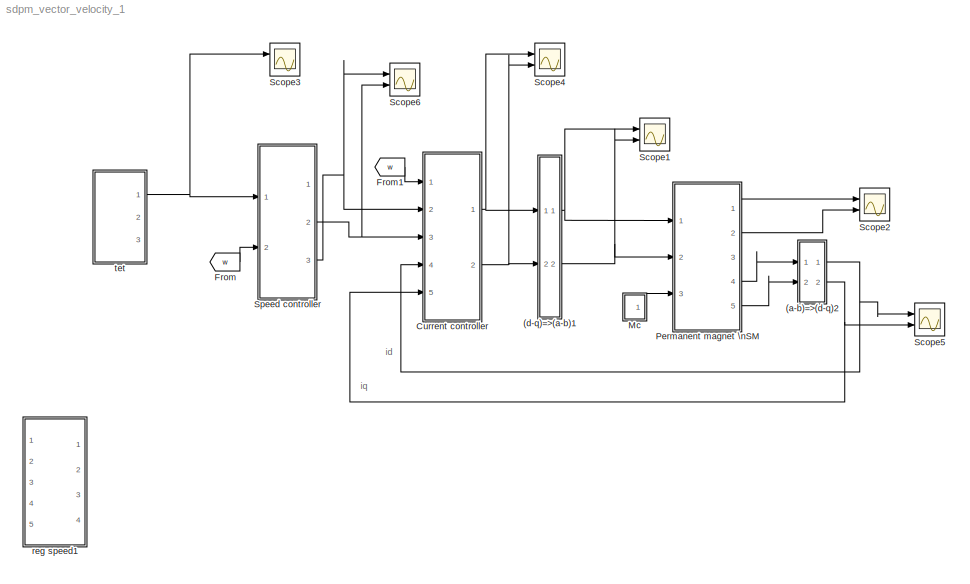
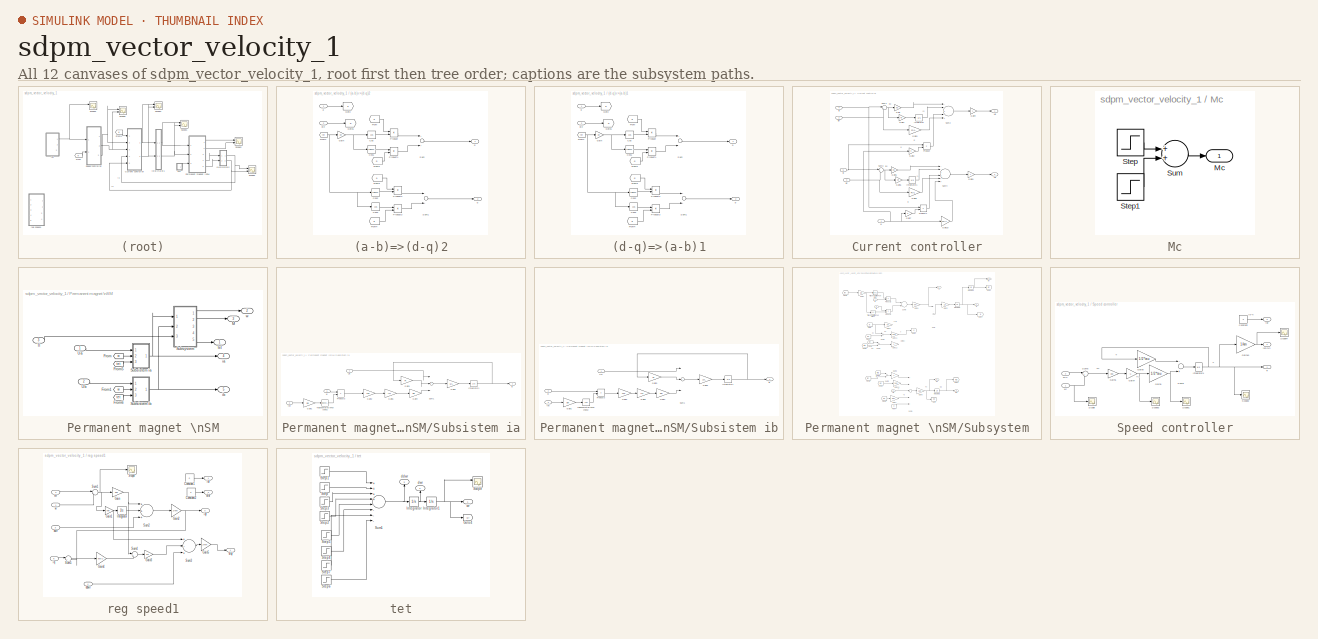
[diagram: thumbnail index - all 12 canvases of the model, root first then tree order]
MODEL sdpm_vector_velocity_1
KIND model
BLOCK [SubSystem] (a-b)=>(d-q)2
  Ports = [2, 2]
  RequestExecContextInheritance = off
  SID = 608
  Variant = off
BLOCK [Trigonometry] (a-b)=>(d-q)2/Cos
  Operator = cos
  Ports = [1, 1]
  SID = 1042
BLOCK [Trigonometry] (a-b)=>(d-q)2/Cos1
  Ports = [1, 1]
  SID = 1043
BLOCK [Trigonometry] (a-b)=>(d-q)2/Cos2
  Ports = [1, 1]
  SID = 1044
BLOCK [Trigonometry] (a-b)=>(d-q)2/Cos3
  Operator = cos
  Ports = [1, 1]
  SID = 1045
BLOCK [From] (a-b)=>(d-q)2/From
  GotoTag = a
  SID = 1046
BLOCK [From] (a-b)=>(d-q)2/From1
  CloseFcn = tagdialog Close
  GotoTag = tet
  SID = 1047
  TagVisibility = global
BLOCK [From] (a-b)=>(d-q)2/From2
  GotoTag = b
  SID = 1048
BLOCK [From] (a-b)=>(d-q)2/From3
  GotoTag = a
  SID = 1049
BLOCK [From] (a-b)=>(d-q)2/From4
  GotoTag = b
  SID = 1050
BLOCK [Gain] (a-b)=>(d-q)2/Gain
  Gain = pn
  OutDataTypeStr = Inherit: Inherit via internal rule
  ParamDataTypeStr = Inherit: Inherit via internal rule
  SID = 1051
  SaturateOnIntegerOverflow = off
BLOCK [Goto] (a-b)=>(d-q)2/Goto
  GotoTag = a
  SID = 1052
BLOCK [Goto] (a-b)=>(d-q)2/Goto1
  GotoTag = b
  SID = 1053
BLOCK [Product] (a-b)=>(d-q)2/Product
  InputSameDT = off
  OutDataTypeStr = Inherit: Inherit via internal rule
  Ports = [2, 1]
  RndMeth = Floor
  SID = 1054
  SaturateOnIntegerOverflow = off
BLOCK [Product] (a-b)=>(d-q)2/Product1
  InputSameDT = off
  OutDataTypeStr = Inherit: Inherit via internal rule
  Ports = [2, 1]
  RndMeth = Floor
  SID = 1055
  SaturateOnIntegerOverflow = off
BLOCK [Product] (a-b)=>(d-q)2/Product2
  InputSameDT = off
  OutDataTypeStr = Inherit: Inherit via internal rule
  Ports = [2, 1]
  RndMeth = Floor
  SID = 1056
  SaturateOnIntegerOverflow = off
BLOCK [Product] (a-b)=>(d-q)2/Product3
  InputSameDT = off
  OutDataTypeStr = Inherit: Inherit via internal rule
  Ports = [2, 1]
  RndMeth = Floor
  SID = 1057
  SaturateOnIntegerOverflow = off
BLOCK [Sum] (a-b)=>(d-q)2/Sum
  InputSameDT = off
  OutDataTypeStr = Inherit: Inherit via internal rule
  Ports = [2, 1]
  SID = 1058
  SaturateOnIntegerOverflow = off
BLOCK [Sum] (a-b)=>(d-q)2/Sum1
  InputSameDT = off
  Inputs = -+
  OutDataTypeStr = Inherit: Inherit via internal rule
  Ports = [2, 1]
  SID = 1059
  SaturateOnIntegerOverflow = off
BLOCK [Inport] (a-b)=>(d-q)2/a
  IconDisplay = Port number
  SID = 1040
BLOCK [Inport] (a-b)=>(d-q)2/b\n
  IconDisplay = Port number
  Port = 2
  SID = 1041
BLOCK [Outport] (a-b)=>(d-q)2/d
  IconDisplay = Port number
  SID = 1060
BLOCK [Outport] (a-b)=>(d-q)2/q
  IconDisplay = Port number
  Port = 2
  SID = 1061
BLOCK [SubSystem] (d-q)=>(a-b)1
  Ports = [2, 2]
  RequestExecContextInheritance = off
  SID = 586
  Variant = off
BLOCK [Trigonometry] (d-q)=>(a-b)1/Cos
  Operator = cos
  Ports = [1, 1]
  SID = 1021
BLOCK [Trigonometry] (d-q)=>(a-b)1/Cos1
  Ports = [1, 1]
  SID = 1022
BLOCK [Trigonometry] (d-q)=>(a-b)1/Cos2
  Ports = [1, 1]
  SID = 1026
BLOCK [Trigonometry] (d-q)=>(a-b)1/Cos3
  Operator = cos
  Ports = [1, 1]
  SID = 1027
BLOCK [From] (d-q)=>(a-b)1/From
  GotoTag = d
  SID = 1036
BLOCK [From] (d-q)=>(a-b)1/From1
  CloseFcn = tagdialog Close
  GotoTag = tet
  SID = 652
  TagVisibility = global
BLOCK [From] (d-q)=>(a-b)1/From2
  GotoTag = q
  SID = 1037
BLOCK [From] (d-q)=>(a-b)1/From3
  GotoTag = d
  SID = 1038
BLOCK [From] (d-q)=>(a-b)1/From4
  GotoTag = q
  SID = 1039
BLOCK [Gain] (d-q)=>(a-b)1/Gain
  Gain = pn
  OutDataTypeStr = Inherit: Inherit via internal rule
  ParamDataTypeStr = Inherit: Inherit via internal rule
  SID = 590
  SaturateOnIntegerOverflow = off
BLOCK [Goto] (d-q)=>(a-b)1/Goto
  GotoTag = d
  SID = 1032
BLOCK [Goto] (d-q)=>(a-b)1/Goto1
  GotoTag = q
  SID = 1034
BLOCK [Product] (d-q)=>(a-b)1/Product
  InputSameDT = off
  OutDataTypeStr = Inherit: Inherit via internal rule
  Ports = [2, 1]
  RndMeth = Floor
  SID = 1023
  SaturateOnIntegerOverflow = off
BLOCK [Product] (d-q)=>(a-b)1/Product1
  InputSameDT = off
  OutDataTypeStr = Inherit: Inherit via internal rule
  Ports = [2, 1]
  RndMeth = Floor
  SID = 1025
  SaturateOnIntegerOverflow = off
BLOCK [Product] (d-q)=>(a-b)1/Product2
  InputSameDT = off
  OutDataTypeStr = Inherit: Inherit via internal rule
  Ports = [2, 1]
  RndMeth = Floor
  SID = 1028
  SaturateOnIntegerOverflow = off
BLOCK [Product] (d-q)=>(a-b)1/Product3
  InputSameDT = off
  OutDataTypeStr = Inherit: Inherit via internal rule
  Ports = [2, 1]
  RndMeth = Floor
  SID = 1029
  SaturateOnIntegerOverflow = off
BLOCK [Sum] (d-q)=>(a-b)1/Sum
  InputSameDT = off
  Inputs = +-
  OutDataTypeStr = Inherit: Inherit via internal rule
  Ports = [2, 1]
  SID = 1024
  SaturateOnIntegerOverflow = off
BLOCK [Sum] (d-q)=>(a-b)1/Sum1
  InputSameDT = off
  OutDataTypeStr = Inherit: Inherit via internal rule
  Ports = [2, 1]
  SID = 1030
  SaturateOnIntegerOverflow = off
BLOCK [Outport] (d-q)=>(a-b)1/a
  IconDisplay = Port number
  SID = 606
BLOCK [Outport] (d-q)=>(a-b)1/b
  IconDisplay = Port number
  Port = 2
  SID = 607
BLOCK [Inport] (d-q)=>(a-b)1/d
  IconDisplay = Port number
  SID = 587
BLOCK [Inport] (d-q)=>(a-b)1/q\n
  IconDisplay = Port number
  Port = 2
  SID = 1035
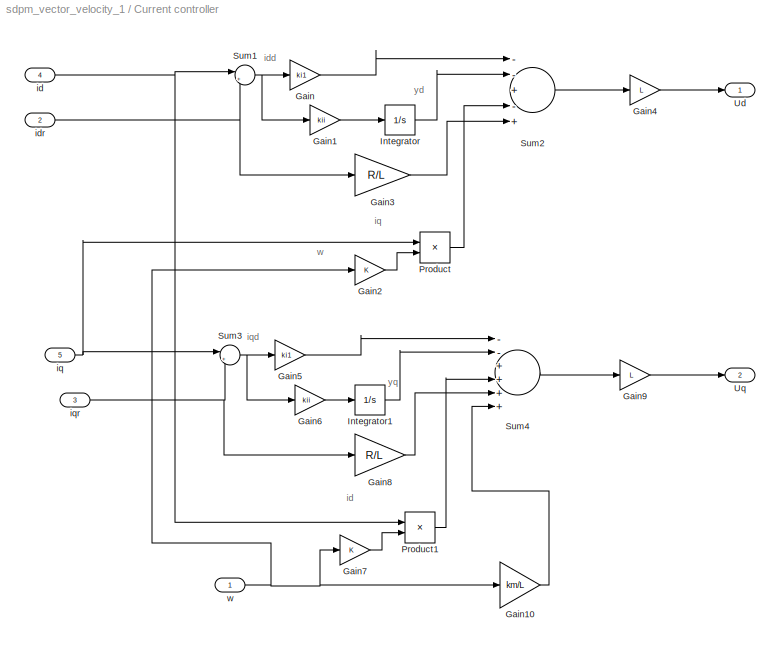
BLOCK [SubSystem] Current controller
  Ports = [5, 2]
  RequestExecContextInheritance = off
  SID = 389
  Variant = off
BLOCK [Gain] Current controller/Gain
  Gain = ki1
  OutDataTypeStr = Inherit: Inherit via internal rule
  ParamDataTypeStr = Inherit: Inherit via internal rule
  SID = 399
  SaturateOnIntegerOverflow = off
BLOCK [Gain] Current controller/Gain1
  Gain = kii
  OutDataTypeStr = Inherit: Inherit via internal rule
  ParamDataTypeStr = Inherit: Inherit via internal rule
  SID = 400
  SaturateOnIntegerOverflow = off
BLOCK [Gain] Current controller/Gain10
  Gain = km/L
  OutDataTypeStr = Inherit: Inherit via internal rule
  ParamDataTypeStr = Inherit: Inherit via internal rule
  SID = 401
  SaturateOnIntegerOverflow = off
BLOCK [Gain] Current controller/Gain2
  OutDataTypeStr = Inherit: Inherit via internal rule
  ParamDataTypeStr = Inherit: Inherit via internal rule
  SID = 402
  SaturateOnIntegerOverflow = off
BLOCK [Gain] Current controller/Gain3
  Gain = R/L
  OutDataTypeStr = Inherit: Inherit via internal rule
  ParamDataTypeStr = Inherit: Inherit via internal rule
  SID = 403
  SaturateOnIntegerOverflow = off
BLOCK [Gain] Current controller/Gain4
  Gain = L
  OutDataTypeStr = Inherit: Inherit via internal rule
  ParamDataTypeStr = Inherit: Inherit via internal rule
  SID = 404
  SaturateOnIntegerOverflow = off
BLOCK [Gain] Current controller/Gain5
  Gain = ki1
  OutDataTypeStr = Inherit: Inherit via internal rule
  ParamDataTypeStr = Inherit: Inherit via internal rule
  SID = 405
  SaturateOnIntegerOverflow = off
BLOCK [Gain] Current controller/Gain6
  Gain = kii
  OutDataTypeStr = Inherit: Inherit via internal rule
  ParamDataTypeStr = Inherit: Inherit via internal rule
  SID = 406
  SaturateOnIntegerOverflow = off
BLOCK [Gain] Current controller/Gain7
  OutDataTypeStr = Inherit: Inherit via internal rule
  ParamDataTypeStr = Inherit: Inherit via internal rule
  SID = 407
  SaturateOnIntegerOverflow = off
BLOCK [Gain] Current controller/Gain8
  Gain = R/L
  OutDataTypeStr = Inherit: Inherit via internal rule
  ParamDataTypeStr = Inherit: Inherit via internal rule
  SID = 408
  SaturateOnIntegerOverflow = off
BLOCK [Gain] Current controller/Gain9
  Gain = L
  OutDataTypeStr = Inherit: Inherit via internal rule
  ParamDataTypeStr = Inherit: Inherit via internal rule
  SID = 409
  SaturateOnIntegerOverflow = off
BLOCK [Integrator] Current controller/Integrator
  Ports = [1, 1]
  SID = 410
BLOCK [Integrator] Current controller/Integrator1
  Ports = [1, 1]
  SID = 411
BLOCK [Product] Current controller/Product
  InputSameDT = off
  OutDataTypeStr = Inherit: Inherit via internal rule
  Ports = [2, 1]
  RndMeth = Floor
  SID = 412
  SaturateOnIntegerOverflow = off
BLOCK [Product] Current controller/Product1
  InputSameDT = off
  OutDataTypeStr = Inherit: Inherit via internal rule
  Ports = [2, 1]
  RndMeth = Floor
  SID = 413
  SaturateOnIntegerOverflow = off
BLOCK [Sum] Current controller/Sum1
  IconShape = round
  InputSameDT = off
  Inputs = |+-
  OutDataTypeStr = Inherit: Inherit via internal rule
  Ports = [2, 1]
  SID = 414
  SaturateOnIntegerOverflow = off
BLOCK [Sum] Current controller/Sum2
  InputSameDT = off
  Inputs = --+-+
  OutDataTypeStr = Inherit: Inherit via internal rule
  Ports = [5, 1]
  SID = 415
  SaturateOnIntegerOverflow = off
BLOCK [Sum] Current controller/Sum3
  IconShape = round
  InputSameDT = off
  Inputs = |+-
  OutDataTypeStr = Inherit: Inherit via internal rule
  Ports = [2, 1]
  SID = 416
  SaturateOnIntegerOverflow = off
BLOCK [Sum] Current controller/Sum4
  InputSameDT = off
  Inputs = --++++
  OutDataTypeStr = Inherit: Inherit via internal rule
  Ports = [6, 1]
  SID = 417
  SaturateOnIntegerOverflow = off
BLOCK [Outport] Current controller/Ud
  IconDisplay = Port number
  SID = 418
BLOCK [Outport] Current controller/Uq
  IconDisplay = Port number
  Port = 2
  SID = 419
BLOCK [Inport] Current controller/id
  IconDisplay = Port number
  Port = 4
  SID = 390
BLOCK [Inport] Current controller/idr
  IconDisplay = Port number
  Port = 2
  SID = 391
BLOCK [Inport] Current controller/iq
  IconDisplay = Port number
  Port = 5
  SID = 393
BLOCK [Inport] Current controller/iqr
  IconDisplay = Port number
  Port = 3
  SID = 394
BLOCK [Inport] Current controller/w
  IconDisplay = Port number
  SID = 396
BLOCK [From] From
  GotoTag = w
  SID = 911
  TagVisibility = global
BLOCK [From] From1
  GotoTag = w
  SID = 933
  TagVisibility = global
BLOCK [SubSystem] Mc
  Ports = [0, 1]
  RequestExecContextInheritance = off
  SID = 238
  Variant = off
BLOCK [Outport] Mc/Mc
  IconDisplay = Port number
  SID = 242
BLOCK [Step] Mc/Step
  After = Mc
  SID = 239
  Time = te
BLOCK [Step] Mc/Step1
  After = -Mc
  SID = 240
  Time = td
BLOCK [Sum] Mc/Sum
  Ports = [2, 1]
  SID = 241
BLOCK [SubSystem] Permanent magnet \nSM
  Ports = [3, 5]
  RequestExecContextInheritance = off
  SID = 243
  Variant = off
BLOCK [From] Permanent magnet \nSM/From
  GotoTag = w
  SID = 922
  TagVisibility = global
BLOCK [From] Permanent magnet \nSM/From1
  GotoTag = w
  SID = 923
  TagVisibility = global
BLOCK [From] Permanent magnet \nSM/From5
  GotoTag = tet
  SID = 929
  TagVisibility = global
BLOCK [From] Permanent magnet \nSM/From6
  GotoTag = tet
  SID = 930
  TagVisibility = global
BLOCK [Outport] Permanent magnet \nSM/M
  IconDisplay = Port number
  Port = 3
  SID = 293
BLOCK [SubSystem] Permanent magnet \nSM/Subsistem ia
  Ports = [3, 1]
  RequestExecContextInheritance = off
  SID = 248
  Variant = off
BLOCK [Gain] Permanent magnet \nSM/Subsistem ia/Gain1
  Gain = pn
  SID = 252
BLOCK [Gain] Permanent magnet \nSM/Subsistem ia/Gain2
  Gain = Lm
  SID = 870
BLOCK [Gain] Permanent magnet \nSM/Subsistem ia/Gain3
  Gain = R
  SID = 253
BLOCK [Gain] Permanent magnet \nSM/Subsistem ia/Gain4
  Gain = pn
  SID = 254
BLOCK [Gain] Permanent magnet \nSM/Subsistem ia/Gain5
  Gain = 1/L
  SID = 255
BLOCK [Gain] Permanent magnet \nSM/Subsistem ia/Gain6
  Gain = iff
  SID = 871
BLOCK [Integrator] Permanent magnet \nSM/Subsistem ia/Integrator1
  Ports = [1, 1]
  SID = 256
BLOCK [Product] Permanent magnet \nSM/Subsistem ia/Product3
  Ports = [2, 1]
  SID = 257
BLOCK [Sum] Permanent magnet \nSM/Subsistem ia/Sum1
  InputSameDT = off
  Inputs = |+-+
  OutDataTypeStr = Inherit: Inherit via internal rule
  Ports = [3, 1]
  SID = 258
  SaturateOnIntegerOverflow = off
BLOCK [Trigonometry] Permanent magnet \nSM/Subsistem ia/Trigonometric\nFunction2
  Ports = [1, 1]
  SID = 259
BLOCK [Inport] Permanent magnet \nSM/Subsistem ia/Ua
  IconDisplay = Port number
  SID = 249
BLOCK [Outport] Permanent magnet \nSM/Subsistem ia/ia
  IconDisplay = Port number
  SID = 260
BLOCK [Inport] Permanent magnet \nSM/Subsistem ia/tet
  IconDisplay = Port number
  Port = 3
  SID = 251
BLOCK [Inport] Permanent magnet \nSM/Subsistem ia/w
  IconDisplay = Port number
  Port = 2
  SID = 250
BLOCK [SubSystem] Permanent magnet \nSM/Subsistem ib
  Ports = [3, 1]
  RequestExecContextInheritance = off
  SID = 261
  Variant = off
BLOCK [Gain] Permanent magnet \nSM/Subsistem ib/Gain1
  Gain = pn
  SID = 265
BLOCK [Gain] Permanent magnet \nSM/Subsistem ib/Gain2
  Gain = Lm
  SID = 874
BLOCK [Gain] Permanent magnet \nSM/Subsistem ib/Gain3
  Gain = R
  SID = 266
BLOCK [Gain] Permanent magnet \nSM/Subsistem ib/Gain4
  Gain = pn
  SID = 875
BLOCK [Gain] Permanent magnet \nSM/Subsistem ib/Gain5
  Gain = 1/L
  SID = 268
BLOCK [Gain] Permanent magnet \nSM/Subsistem ib/Gain6
  Gain = iff
  SID = 876
BLOCK [Integrator] Permanent magnet \nSM/Subsistem ib/Integrator1
  Ports = [1, 1]
  SID = 269
BLOCK [Product] Permanent magnet \nSM/Subsistem ib/Product3
  Ports = [2, 1]
  SID = 270
BLOCK [Sum] Permanent magnet \nSM/Subsistem ib/Sum1
  InputSameDT = off
  Inputs = |+--
  OutDataTypeStr = Inherit: Inherit via internal rule
  Ports = [3, 1]
  SID = 271
  SaturateOnIntegerOverflow = off
BLOCK [Trigonometry] Permanent magnet \nSM/Subsistem ib/Trigonometric\nFunction2
  Operator = cos
  Ports = [1, 1]
  SID = 272
BLOCK [Inport] Permanent magnet \nSM/Subsistem ib/Ub
  IconDisplay = Port number
  SID = 262
BLOCK [Outport] Permanent magnet \nSM/Subsistem ib/ib
  IconDisplay = Port number
  SID = 273
BLOCK [Inport] Permanent magnet \nSM/Subsistem ib/tet
  IconDisplay = Port number
  Port = 3
  SID = 264
BLOCK [Inport] Permanent magnet \nSM/Subsistem ib/w
  IconDisplay = Port number
  Port = 2
  SID = 263
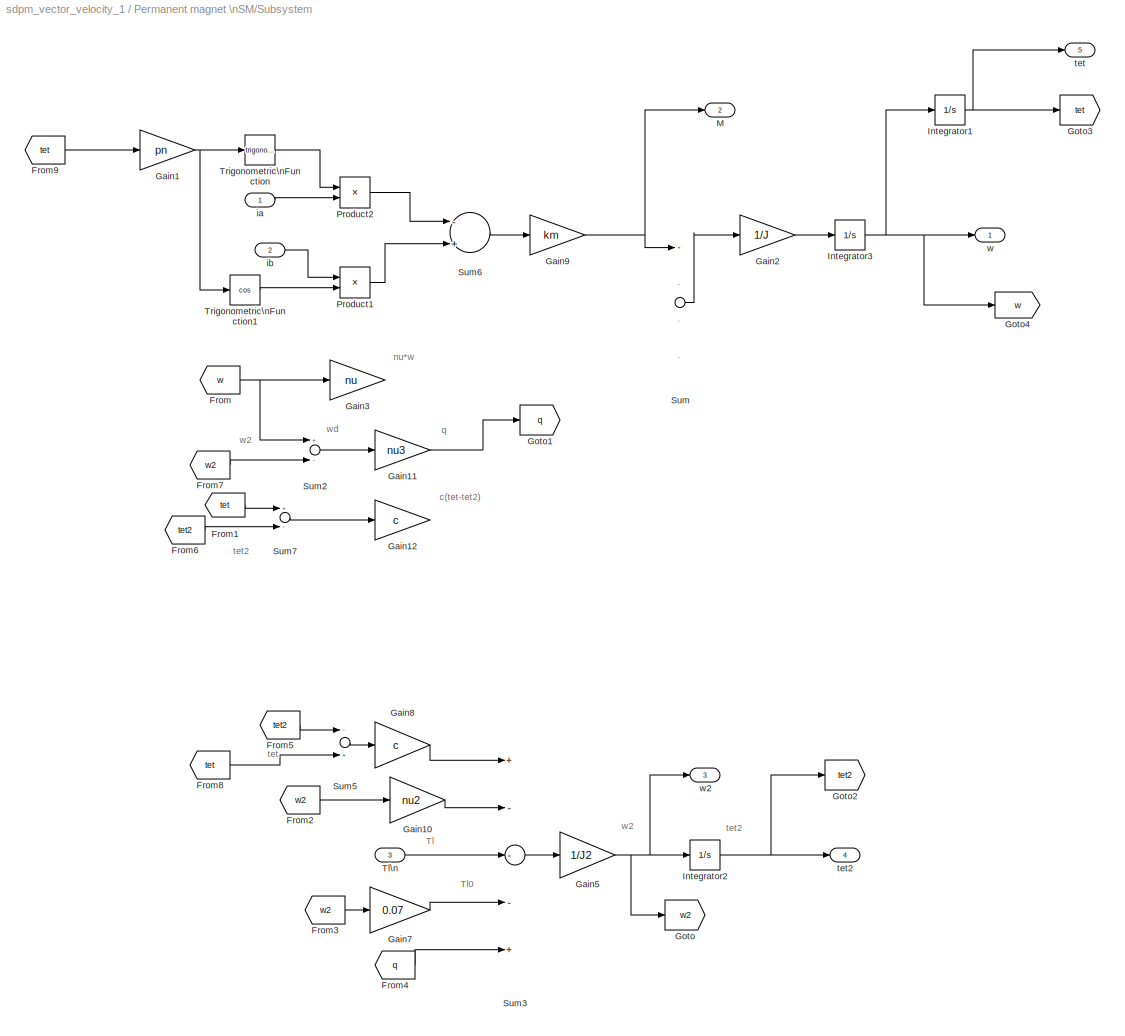
BLOCK [SubSystem] Permanent magnet \nSM/Subsystem
  Ports = [3, 5]
  RequestExecContextInheritance = off
  SID = 274
  Variant = off
BLOCK [From] Permanent magnet \nSM/Subsystem/From
  GotoTag = w
  SID = 934
  TagVisibility = global
BLOCK [From] Permanent magnet \nSM/Subsystem/From1
  GotoTag = tet
  SID = 1001
  TagVisibility = global
BLOCK [From] Permanent magnet \nSM/Subsystem/From2
  GotoTag = w2
  SID = 1006
BLOCK [From] Permanent magnet \nSM/Subsystem/From3
  GotoTag = w2
  SID = 1008
BLOCK [From] Permanent magnet \nSM/Subsystem/From4
  GotoTag = q
  SID = 1011
BLOCK [From] Permanent magnet \nSM/Subsystem/From5
  GotoTag = tet2
  SID = 1013
BLOCK [From] Permanent magnet \nSM/Subsystem/From6
  GotoTag = tet2
  SID = 1014
BLOCK [From] Permanent magnet \nSM/Subsystem/From7
  GotoTag = w2
  SID = 1015
BLOCK [From] Permanent magnet \nSM/Subsystem/From8
  GotoTag = tet
  SID = 1018
  TagVisibility = global
BLOCK [From] Permanent magnet \nSM/Subsystem/From9
  GotoTag = tet
  SID = 1019
  TagVisibility = global
BLOCK [Gain] Permanent magnet \nSM/Subsystem/Gain1
  Gain = pn
  SID = 279
BLOCK [Gain] Permanent magnet \nSM/Subsystem/Gain10
  Gain = nu2
  SID = 975
BLOCK [Gain] Permanent magnet \nSM/Subsystem/Gain11
  Gain = nu3
  SID = 998
BLOCK [Gain] Permanent magnet \nSM/Subsystem/Gain12
  Gain = c
  SID = 1003
BLOCK [Gain] Permanent magnet \nSM/Subsystem/Gain2
  Gain = 1/J
  SID = 280
BLOCK [Gain] Permanent magnet \nSM/Subsystem/Gain3
  Gain = nu
  SID = 935
BLOCK [Gain] Permanent magnet \nSM/Subsystem/Gain5
  Gain = 1/J2
  SID = 971
BLOCK [Gain] Permanent magnet \nSM/Subsystem/Gain7
  Gain = 0.07
  SID = 973
BLOCK [Gain] Permanent magnet \nSM/Subsystem/Gain8
  Gain = c
  SID = 974
BLOCK [Gain] Permanent magnet \nSM/Subsystem/Gain9
  Gain = km
  SID = 281
BLOCK [Goto] Permanent magnet \nSM/Subsystem/Goto
  GotoTag = w2
  SID = 1005
BLOCK [Goto] Permanent magnet \nSM/Subsystem/Goto1
  GotoTag = q
  SID = 1010
BLOCK [Goto] Permanent magnet \nSM/Subsystem/Goto2
  GotoTag = tet2
  SID = 1012
BLOCK [Goto] Permanent magnet \nSM/Subsystem/Goto3
  GotoTag = tet
  SID = 1017
  TagVisibility = global
BLOCK [Goto] Permanent magnet \nSM/Subsystem/Goto4
  GotoTag = w
  SID = 237
  TagVisibility = global
BLOCK [Integrator] Permanent magnet \nSM/Subsystem/Integrator1
  Ports = [1, 1]
  SID = 1016
BLOCK [Integrator] Permanent magnet \nSM/Subsystem/Integrator2
  Ports = [1, 1]
  SID = 976
BLOCK [Integrator] Permanent magnet \nSM/Subsystem/Integrator3
  Ports = [1, 1]
  SID = 282
BLOCK [Outport] Permanent magnet \nSM/Subsystem/M
  IconDisplay = Port number
  Port = 2
  SID = 290
BLOCK [Product] Permanent magnet \nSM/Subsystem/Product1
  Ports = [2, 1]
  SID = 283
BLOCK [Product] Permanent magnet \nSM/Subsystem/Product2
  Ports = [2, 1]
  SID = 284
BLOCK [Sum] Permanent magnet \nSM/Subsystem/Sum
  InputSameDT = off
  Inputs = +---
  OutDataTypeStr = Inherit: Inherit via internal rule
  Ports = [4, 1]
  SID = 285
  SaturateOnIntegerOverflow = off
BLOCK [Sum] Permanent magnet \nSM/Subsystem/Sum2
  Inputs = +-
  Ports = [2, 1]
  SID = 995
BLOCK [Sum] Permanent magnet \nSM/Subsystem/Sum3
  Inputs = +---+
  Ports = [5, 1]
  SID = 978
BLOCK [Sum] Permanent magnet \nSM/Subsystem/Sum5
  Inputs = -+
  Ports = [2, 1]
  SID = 980
BLOCK [Sum] Permanent magnet \nSM/Subsystem/Sum6
  Inputs = -+
  Ports = [2, 1]
  SID = 286
BLOCK [Sum] Permanent magnet \nSM/Subsystem/Sum7
  Inputs = +-
  Ports = [2, 1]
  SID = 1000
BLOCK [Inport] Permanent magnet \nSM/Subsystem/Tl\n
  IconDisplay = Port number
  Port = 3
  SID = 969
BLOCK [Trigonometry] Permanent magnet \nSM/Subsystem/Trigonometric\nFunction
  Ports = [1, 1]
  SID = 287
BLOCK [Trigonometry] Permanent magnet \nSM/Subsystem/Trigonometric\nFunction1
  Operator = cos
  Ports = [1, 1]
  SID = 288
BLOCK [Inport] Permanent magnet \nSM/Subsystem/ia
  IconDisplay = Port number
  SID = 277
BLOCK [Inport] Permanent magnet \nSM/Subsystem/ib
  IconDisplay = Port number
  Port = 2
  SID = 278
BLOCK [Outport] Permanent magnet \nSM/Subsystem/tet
  IconDisplay = Port number
  Port = 5
  SID = 1020
BLOCK [Outport] Permanent magnet \nSM/Subsystem/tet2
  IconDisplay = Port number
  Port = 4
  SID = 982
BLOCK [Outport] Permanent magnet \nSM/Subsystem/w
  IconDisplay = Port number
  SID = 289
BLOCK [Outport] Permanent magnet \nSM/Subsystem/w2
  IconDisplay = Port number
  Port = 3
  SID = 981
BLOCK [Inport] Permanent magnet \nSM/Tl
  IconDisplay = Port number
  Port = 3
  SID = 246
BLOCK [Inport] Permanent magnet \nSM/Ua
  IconDisplay = Port number
  SID = 244
BLOCK [Inport] Permanent magnet \nSM/Ub
  IconDisplay = Port number
  Port = 2
  SID = 245
BLOCK [Outport] Permanent magnet \nSM/ia
  IconDisplay = Port number
  Port = 4
  SID = 294
BLOCK [Outport] Permanent magnet \nSM/ib
  IconDisplay = Port number
  Port = 5
  SID = 295
BLOCK [Outport] Permanent magnet \nSM/tet
  IconDisplay = Port number
  SID = 291
BLOCK [Outport] Permanent magnet \nSM/w
  IconDisplay = Port number
  Port = 2
  SID = 292
BLOCK [Scope] Scope1
  NumInputPorts = 2
  Ports = [2]
  SID = 297
  ScopeSpecificationString = Simulink.scopes.TimeScopeBlockCfg('CurrentConfiguration', extmgr.ConfigurationSet(extmgr.Configuration('Core','General UI',true),extmgr.Configuration('Core','Source UI',true),extmgr.Configuration('Sources','WiredSimulink',true,'DataLoggingVariableName','ScopeData3','DataLoggingSaveFormat','StructureWithTime','DataLoggingDecimation','1','DataLoggingDecimateData',true),extmgr.Configuration('Visuals'...<+2319ch>
BLOCK [Scope] Scope2
  NumInputPorts = 2
  Ports = [2]
  SID = 932
  ScopeSpecificationString = Simulink.scopes.TimeScopeBlockCfg('CurrentConfiguration', extmgr.ConfigurationSet(extmgr.Configuration('Core','General UI',true),extmgr.Configuration('Core','Source UI',true),extmgr.Configuration('Sources','WiredSimulink',true,'DataLoggingSaveFormat','StructureWithTime','DataLoggingDecimation','1','DataLoggingDecimateData',true,'DataLoggingVariableName','ScopeData7'),extmgr.Configuration('Visuals'...<+2389ch>
BLOCK [Scope] Scope3
  NumInputPorts = 2
  Ports = [2]
  SID = 299
  ScopeSpecificationString = Simulink.scopes.TimeScopeBlockCfg('CurrentConfiguration', extmgr.ConfigurationSet(extmgr.Configuration('Core','General UI',true),extmgr.Configuration('Core','Source UI',true),extmgr.Configuration('Sources','WiredSimulink',true,'DataLoggingVariableName','ScopeData4','DataLoggingSaveFormat','StructureWithTime','DataLoggingDecimation','1','DataLoggingDecimateData',true),extmgr.Configuration('Visuals'...<+2306ch>
BLOCK [Scope] Scope4
  NumInputPorts = 2
  Ports = [2]
  SID = 879
  ScopeSpecificationString = Simulink.scopes.TimeScopeBlockCfg('CurrentConfiguration', extmgr.ConfigurationSet(extmgr.Configuration('Core','General UI',true),extmgr.Configuration('Core','Source UI',true),extmgr.Configuration('Sources','WiredSimulink',true,'DataLoggingVariableName','ScopeData1','DataLoggingSaveFormat','StructureWithTime','DataLoggingDecimation','1','DataLoggingDecimateData',true),extmgr.Configuration('Visuals'...<+2325ch>
BLOCK [Scope] Scope5
  NumInputPorts = 2
  Ports = [2]
  SID = 798
  ScopeSpecificationString = Simulink.scopes.TimeScopeBlockCfg('CurrentConfiguration', extmgr.ConfigurationSet(extmgr.Configuration('Core','General UI',true),extmgr.Configuration('Core','Source UI',true),extmgr.Configuration('Sources','WiredSimulink',true,'DataLoggingVariableName','ScopeData6','DataLoggingSaveFormat','StructureWithTime','DataLoggingDecimation','1','DataLoggingDecimateData',true),extmgr.Configuration('Visuals'...<+2365ch>
BLOCK [Scope] Scope6
  NumInputPorts = 2
  Ports = [2]
  SID = 913
  ScopeSpecificationString = Simulink.scopes.TimeScopeBlockCfg('CurrentConfiguration', extmgr.ConfigurationSet(extmgr.Configuration('Core','General UI',true),extmgr.Configuration('Core','Source UI',true),extmgr.Configuration('Sources','WiredSimulink',true,'DataLoggingVariableName','ScopeData1','DataLoggingSaveFormat','StructureWithTime','DataLoggingDecimation','1','DataLoggingDecimateData',true),extmgr.Configuration('Visuals'...<+2320ch>
BLOCK [SubSystem] Speed controller
  Ports = [2, 3]
  RequestExecContextInheritance = off
  SID = 673
  Variant = off
BLOCK [Constant] Speed controller/Constant
  SID = 905
  Value = 0
BLOCK [Gain] Speed controller/Gain10
  Gain = 1/km
  OutDataTypeStr = Inherit: Inherit via internal rule
  ParamDataTypeStr = Inherit: Inherit via internal rule
  SID = 902
  SaturateOnIntegerOverflow = off
BLOCK [Gain] Speed controller/Gain6
  Gain = kw
  OutDataTypeStr = Inherit: Inherit via internal rule
  ParamDataTypeStr = Inherit: Inherit via internal rule
  SID = 892
  SaturateOnIntegerOverflow = off
BLOCK [Gain] Speed controller/Gain7
  Gain = -1
  OutDataTypeStr = Inherit: Inherit via internal rule
  ParamDataTypeStr = Inherit: Inherit via internal rule
  SID = 893
  SaturateOnIntegerOverflow = off
BLOCK [Gain] Speed controller/Gain8
  Gain = 1/2*tau
  OutDataTypeStr = Inherit: Inherit via internal rule
  ParamDataTypeStr = Inherit: Inherit via internal rule
  SID = 898
  SaturateOnIntegerOverflow = off
BLOCK [Gain] Speed controller/Gain9
  Gain = 1/2*tau
  OutDataTypeStr = Inherit: Inherit via internal rule
  ParamDataTypeStr = Inherit: Inherit via internal rule
  SID = 899
  SaturateOnIntegerOverflow = off
BLOCK [Integrator] Speed controller/Integrator1
  Ports = [1, 1]
  SID = 895
BLOCK [Scope] Speed controller/Scope
  NumInputPorts = 1
  Ports = [1]
  SID = 915
  ScopeSpecificationString = Simulink.scopes.TimeScopeBlockCfg('CurrentConfiguration', extmgr.ConfigurationSet(extmgr.Configuration('Core','General UI',true),extmgr.Configuration('Core','Source UI',true),extmgr.Configuration('Sources','WiredSimulink',true,'DataLoggingVariableName','ScopeData2'),extmgr.Configuration('Visuals','Time Domain',true,'SerializedDisplays',{struct('MinYLimReal','-125.00000','MaxYLimReal','1125.00000',...<+1377ch>
BLOCK [Scope] Speed controller/Scope1
  NumInputPorts = 1
  Ports = [1]
  SID = 916
  ScopeSpecificationString = Simulink.scopes.TimeScopeBlockCfg('CurrentConfiguration', extmgr.ConfigurationSet(extmgr.Configuration('Core','General UI',true),extmgr.Configuration('Core','Source UI',true),extmgr.Configuration('Sources','WiredSimulink',true,'DataLoggingVariableName','ScopeData3'),extmgr.Configuration('Visuals','Time Domain',true,'SerializedDisplays',{struct('MinYLimReal','-0.00028','MaxYLimReal','0.0022','YLabe...<+1360ch>
BLOCK [Scope] Speed controller/Scope2
  NumInputPorts = 1
  Ports = [1]
  SID = 917
  ScopeSpecificationString = Simulink.scopes.TimeScopeBlockCfg('CurrentConfiguration', extmgr.ConfigurationSet(extmgr.Configuration('Core','General UI',true),extmgr.Configuration('Core','Source UI',true),extmgr.Configuration('Sources','WiredSimulink',true,'DataLoggingVariableName','ScopeData4'),extmgr.Configuration('Visuals','Time Domain',true,'SerializedDisplays',{struct('MinYLimReal','-0.00036','MaxYLimReal','0.00323','YLab...<+1370ch>
BLOCK [Scope] Speed controller/Scope3
  NumInputPorts = 1
  Ports = [1]
  SID = 918
  ScopeSpecificationString = Simulink.scopes.TimeScopeBlockCfg('CurrentConfiguration', extmgr.ConfigurationSet(extmgr.Configuration('Core','General UI',true),extmgr.Configuration('Core','Source UI',true),extmgr.Configuration('Sources','WiredSimulink',true,'DataLoggingVariableName','ScopeData5'),extmgr.Configuration('Visuals','Time Domain',true,'SerializedDisplays',{struct('MinYLimReal','37.82266','MaxYLimReal','42.67193','YLa...<+1389ch>
BLOCK [Scope] Speed controller/Scope4
  NumInputPorts = 1
  Ports = [1]
  SID = 919
  ScopeSpecificationString = Simulink.scopes.TimeScopeBlockCfg('CurrentConfiguration', extmgr.ConfigurationSet(extmgr.Configuration('Core','General UI',true),extmgr.Configuration('Core','Source UI',true),extmgr.Configuration('Sources','WiredSimulink',true,'DataLoggingVariableName','ScopeData6'),extmgr.Configuration('Visuals','Time Domain',true,'SerializedDisplays',{struct('MinYLimReal','-0.00181','MaxYLimReal','0.0163','YLabe...<+1361ch>
BLOCK [Sum] Speed controller/Sum5
  IconShape = round
  InputSameDT = off
  Inputs = |+-
  OutDataTypeStr = Inherit: Inherit via internal rule
  Ports = [2, 1]
  SID = 889
  SaturateOnIntegerOverflow = off
BLOCK [Sum] Speed controller/Sum6
  InputSameDT = off
  Inputs = -+
  OutDataTypeStr = Inherit: Inherit via internal rule
  Ports = [2, 1]
  SID = 900
  SaturateOnIntegerOverflow = off
BLOCK [Outport] Speed controller/Tr
  IconDisplay = Port number
  SID = 885
BLOCK [Outport] Speed controller/idr
  IconDisplay = Port number
  Port = 3
  SID = 904
BLOCK [Outport] Speed controller/iqr\n\n
  IconDisplay = Port number
  Port = 2
  SID = 901
BLOCK [Inport] Speed controller/w\n
  IconDisplay = Port number
  Port = 2
  SID = 888
BLOCK [Inport] Speed controller/wr
  IconDisplay = Port number
  SID = 910
BLOCK [SubSystem] reg speed1
  Ports = [5, 4]
  RequestExecContextInheritance = off
  SID = 697
  Variant = off
BLOCK [Constant] reg speed1/Constant1
  SID = 703
  Value = 0
BLOCK [Constant] reg speed1/Constant2
  SID = 704
  Value = 0
BLOCK [Gain] reg speed1/Gain
  Gain = kw
  OutDataTypeStr = Inherit: Inherit via internal rule
  ParamDataTypeStr = Inherit: Inherit via internal rule
  SID = 705
  SaturateOnIntegerOverflow = off
BLOCK [Gain] reg speed1/Gain1
  Gain = kwi
  OutDataTypeStr = Inherit: Inherit via internal rule
  ParamDataTypeStr = Inherit: Inherit via internal rule
  SID = 706
  SaturateOnIntegerOverflow = off
BLOCK [Gain] reg speed1/Gain2
  Gain = J/km
  OutDataTypeStr = Inherit: Inherit via internal rule
  ParamDataTypeStr = Inherit: Inherit via internal rule
  SID = 707
  SaturateOnIntegerOverflow = off
BLOCK [Gain] reg speed1/Gain3
  Gain = kw
  OutDataTypeStr = Inherit: Inherit via internal rule
  ParamDataTypeStr = Inherit: Inherit via internal rule
  SID = 708
  SaturateOnIntegerOverflow = off
BLOCK [Gain] reg speed1/Gain4
  Gain = km/J
  OutDataTypeStr = Inherit: Inherit via internal rule
  ParamDataTypeStr = Inherit: Inherit via internal rule
  SID = 709
  SaturateOnIntegerOverflow = off
BLOCK [Gain] reg speed1/Gain5
  Gain = J/km
  OutDataTypeStr = Inherit: Inherit via internal rule
  ParamDataTypeStr = Inherit: Inherit via internal rule
  SID = 710
  SaturateOnIntegerOverflow = off
BLOCK [Integrator] reg speed1/Integrator
  Ports = [1, 1]
  SID = 711
BLOCK [Scope] reg speed1/Scope
  NumInputPorts = 1
  Ports = [1]
  SID = 712
  ScopeSpecificationString = C++SS(StrPVP('Location','[-2, 55, 1360, 743]'),StrPVP('Open','off'),StrPVP('ZoomMode','xonly'),MxPVP('AxesTitles',53,'struct(''axes1'',''%<SignalLabel>'')'),StrPVP('SaveName','ScopeData1'),StrPVP('DataFormat','StructureWithTime'),StrPVP('LimitDataPoints','off'),StrPVP('BlockParamSampleTime','0'),StrPVP('Decimation','1'),StrPVP('BlockParamSampleInput','off'))
BLOCK [Sum] reg speed1/Sum1
  IconShape = round
  InputSameDT = off
  Inputs = |+-
  OutDataTypeStr = Inherit: Inherit via internal rule
  Ports = [2, 1]
  SID = 713
  SaturateOnIntegerOverflow = off
BLOCK [Sum] reg speed1/Sum2
  InputSameDT = off
  Inputs = +++
  OutDataTypeStr = Inherit: Inherit via internal rule
  Ports = [3, 1]
  SID = 714
  SaturateOnIntegerOverflow = off
BLOCK [Sum] reg speed1/Sum3
  InputSameDT = off
  Inputs = +-+
  OutDataTypeStr = Inherit: Inherit via internal rule
  Ports = [3, 1]
  SID = 715
  SaturateOnIntegerOverflow = off
BLOCK [Sum] reg speed1/Sum4
  IconShape = round
  InputSameDT = off
  Inputs = |++
  OutDataTypeStr = Inherit: Inherit via internal rule
  Ports = [2, 1]
  SID = 716
  SaturateOnIntegerOverflow = off
BLOCK [Sum] reg speed1/Sum5
  IconShape = round
  InputSameDT = off
  Inputs = |+-
  OutDataTypeStr = Inherit: Inherit via internal rule
  Ports = [2, 1]
  SID = 717
  SaturateOnIntegerOverflow = off
BLOCK [Inport] reg speed1/ddwr
  IconDisplay = Port number
  Port = 4
  SID = 701
BLOCK [Outport] reg speed1/didr
  IconDisplay = Port number
  Port = 2
  SID = 719
BLOCK [Outport] reg speed1/diqr
  IconDisplay = Port number
  Port = 4
  SID = 721
BLOCK [Inport] reg speed1/dwr
  IconDisplay = Port number
  Port = 3
  SID = 700
BLOCK [Outport] reg speed1/idr
  IconDisplay = Port number
  SID = 718
BLOCK [Inport] reg speed1/iq
  IconDisplay = Port number
  Port = 5
  SID = 702
BLOCK [Outport] reg speed1/iqr
  IconDisplay = Port number
  Port = 3
  SID = 720
BLOCK [Inport] reg speed1/w
  IconDisplay = Port number
  SID = 698
BLOCK [Inport] reg speed1/wr
  IconDisplay = Port number
  Port = 2
  SID = 699
BLOCK [SubSystem] tet
  Ports = [0, 3]
  RequestExecContextInheritance = off
  SID = 372
  Variant = off
BLOCK [Goto] tet/Goto4
  GotoTag = wr
  SID = 373
  TagVisibility = global
BLOCK [Integrator] tet/Integrator
  Ports = [1, 1]
  SID = 374
BLOCK [Integrator] tet/Integrator1
  Ports = [1, 1]
  SID = 375
BLOCK [Scope] tet/Scope
  NumInputPorts = 2
  Ports = [2]
  SID = 376
  ScopeSpecificationString = C++SS(StrPVP('Location','[-250, 150, 1112, 828]'),StrPVP('Open','off'),MxPVP('AxesTitles',53,'struct(''axes1'',''%<SignalLabel>'',''axes2'',''%<SignalLabel>'')'),StrPVP('YMin','-5~-5'),StrPVP('YMax','5~5'),StrPVP('SaveName','ScopeData1'),StrPVP('DataFormat','StructureWithTime'),StrPVP('LimitDataPoints','off'),StrPVP('BlockParamSampleTime','0'),StrPVP('Decimation','1'),StrPVP('BlockParamSampleInput...<+9ch>
BLOCK [Step] tet/Step
  After = -wrmax/(ka*ta*ka*ta+ka*ta*(ta-2*ka*ta))
  SID = 377
  Time = tex+ta*ka
BLOCK [Step] tet/Step1
  After = wrmax/(ka*ta*ka*ta+ka*ta*(ta-2*ka*ta))
  SID = 378
  Time = tex
BLOCK [Step] tet/Step2
  After = wrmax/(ka*ta*ka*ta+ka*ta*(ta-2*ka*ta))
  SID = 379
  Time = tex+ta
BLOCK [Step] tet/Step3
  After = -wrmax/(ka*ta*ka*ta+ka*ta*(ta-2*ka*ta))
  SID = 380
  Time = tex+ta*ka+(ta-2*ta*ka)
BLOCK [Step] tet/Step4
  After = -wrmax/(ka*ta*ka*ta+ka*ta*(ta-2*ka*ta))
  SID = 381
  Time = tex+ta+tcon+ta*ka
BLOCK [Step] tet/Step5
  After = wrmax/(ka*ta*ka*ta+ka*ta*(ta-2*ka*ta))
  SID = 382
  Time = tex+ta+tcon
BLOCK [Step] tet/Step6
  After = wrmax/(ka*ta*ka*ta+ka*ta*(ta-2*ka*ta))
  SID = 383
  Time = tex+ta+tcon+ta
BLOCK [Step] tet/Step7
  After = -wrmax/(ka*ta*ka*ta+ka*ta*(ta-2*ka*ta))
  SID = 384
  Time = tex+ta+tcon+ta*ka+(ta-2*ta*ka)
BLOCK [Sum] tet/Sum1
  Inputs = ++++----
  Ports = [8, 1]
  SID = 385
BLOCK [Outport] tet/ddwr
  IconDisplay = Port number
  InitialOutput = 0
  Port = 3
  SID = 388
BLOCK [Outport] tet/dwr
  IconDisplay = Port number
  InitialOutput = 0
  Port = 2
  SID = 387
BLOCK [Outport] tet/wr
  IconDisplay = Port number
  InitialOutput = 0
  SID = 386
ANNOTATION (root): id
ANNOTATION (root): iq
ANNOTATION Current controller: id
ANNOTATION Current controller: idd
ANNOTATION Current controller: iq
ANNOTATION Current controller: iqd
ANNOTATION Current controller: w
ANNOTATION Current controller: yd
ANNOTATION Current controller: yq
ANNOTATION Permanent magnet \nSM/Subsystem: Tl
ANNOTATION Permanent magnet \nSM/Subsystem: Tl0
ANNOTATION Permanent magnet \nSM/Subsystem: c(tet-tet2)
ANNOTATION Permanent magnet \nSM/Subsystem: nu*w
ANNOTATION Permanent magnet \nSM/Subsystem: q
ANNOTATION Permanent magnet \nSM/Subsystem: tet
ANNOTATION Permanent magnet \nSM/Subsystem: tet2
ANNOTATION Permanent magnet \nSM/Subsystem: w2
ANNOTATION Permanent magnet \nSM/Subsystem: wd
ANNOTATION Speed controller: \n \n Tr1
ANNOTATION Speed controller: \n \n Tr
ANNOTATION Speed controller: \n \n idr=0
ANNOTATION Speed controller: ew
LINE (a-b)=>(d-q)2/Cos1:1 -> (a-b)=>(d-q)2/Product1:1
LINE (a-b)=>(d-q)2/Cos2:1 -> (a-b)=>(d-q)2/Product2:2
LINE (a-b)=>(d-q)2/Cos3:1 -> (a-b)=>(d-q)2/Product3:1
LINE (a-b)=>(d-q)2/Cos:1 -> (a-b)=>(d-q)2/Product:2
NET (a-b)=>(d-q)2/From1:1 -> (a-b)=>(d-q)2/Cos2:1, (a-b)=>(d-q)2/Cos3:1, (a-b)=>(d-q)2/Gain:1
LINE (a-b)=>(d-q)2/From2:1 -> (a-b)=>(d-q)2/Product1:2
LINE (a-b)=>(d-q)2/From3:1 -> (a-b)=>(d-q)2/Product2:1
LINE (a-b)=>(d-q)2/From4:1 -> (a-b)=>(d-q)2/Product3:2
LINE (a-b)=>(d-q)2/From:1 -> (a-b)=>(d-q)2/Product:1
NET (a-b)=>(d-q)2/Gain:1 -> (a-b)=>(d-q)2/Cos1:1, (a-b)=>(d-q)2/Cos:1
LINE (a-b)=>(d-q)2/Product1:1 -> (a-b)=>(d-q)2/Sum:2
LINE (a-b)=>(d-q)2/Product2:1 -> (a-b)=>(d-q)2/Sum1:1
LINE (a-b)=>(d-q)2/Product3:1 -> (a-b)=>(d-q)2/Sum1:2
LINE (a-b)=>(d-q)2/Product:1 -> (a-b)=>(d-q)2/Sum:1
LINE (a-b)=>(d-q)2/Sum1:1 -> (a-b)=>(d-q)2/q:1
LINE (a-b)=>(d-q)2/Sum:1 -> (a-b)=>(d-q)2/d:1
LINE (a-b)=>(d-q)2/a:1 -> (a-b)=>(d-q)2/Goto:1
LINE (a-b)=>(d-q)2/b\n:1 -> (a-b)=>(d-q)2/Goto1:1
NET (a-b)=>(d-q)2:1 -> Current controller:4, Scope5:1
NET (a-b)=>(d-q)2:2 -> Current controller:5, Scope5:2
LINE (d-q)=>(a-b)1/Cos1:1 -> (d-q)=>(a-b)1/Product1:1
LINE (d-q)=>(a-b)1/Cos2:1 -> (d-q)=>(a-b)1/Product2:2
LINE (d-q)=>(a-b)1/Cos3:1 -> (d-q)=>(a-b)1/Product3:1
LINE (d-q)=>(a-b)1/Cos:1 -> (d-q)=>(a-b)1/Product:2
NET (d-q)=>(a-b)1/From1:1 -> (d-q)=>(a-b)1/Cos2:1, (d-q)=>(a-b)1/Cos3:1, (d-q)=>(a-b)1/Gain:1
LINE (d-q)=>(a-b)1/From2:1 -> (d-q)=>(a-b)1/Product1:2
LINE (d-q)=>(a-b)1/From3:1 -> (d-q)=>(a-b)1/Product2:1
LINE (d-q)=>(a-b)1/From4:1 -> (d-q)=>(a-b)1/Product3:2
LINE (d-q)=>(a-b)1/From:1 -> (d-q)=>(a-b)1/Product:1
NET (d-q)=>(a-b)1/Gain:1 -> (d-q)=>(a-b)1/Cos1:1, (d-q)=>(a-b)1/Cos:1
LINE (d-q)=>(a-b)1/Product1:1 -> (d-q)=>(a-b)1/Sum:2
LINE (d-q)=>(a-b)1/Product2:1 -> (d-q)=>(a-b)1/Sum1:1
LINE (d-q)=>(a-b)1/Product3:1 -> (d-q)=>(a-b)1/Sum1:2
LINE (d-q)=>(a-b)1/Product:1 -> (d-q)=>(a-b)1/Sum:1
LINE (d-q)=>(a-b)1/Sum1:1 -> (d-q)=>(a-b)1/b:1
LINE (d-q)=>(a-b)1/Sum:1 -> (d-q)=>(a-b)1/a:1
LINE (d-q)=>(a-b)1/d:1 -> (d-q)=>(a-b)1/Goto:1
LINE (d-q)=>(a-b)1/q\n:1 -> (d-q)=>(a-b)1/Goto1:1
NET (d-q)=>(a-b)1:1 -> Permanent magnet \nSM:1, Scope1:1
NET (d-q)=>(a-b)1:2 -> Permanent magnet \nSM:2, Scope1:2
LINE Current controller/Gain10:1 -> Current controller/Sum4:6
LINE Current controller/Gain1:1 -> Current controller/Integrator:1
LINE Current controller/Gain2:1 -> Current controller/Product:2
LINE Current controller/Gain3:1 -> Current controller/Sum2:5
LINE Current controller/Gain4:1 -> Current controller/Ud:1
LINE Current controller/Gain5:1 -> Current controller/Sum4:1
LINE Current controller/Gain6:1 -> Current controller/Integrator1:1
LINE Current controller/Gain7:1 -> Current controller/Product1:2
LINE Current controller/Gain8:1 -> Current controller/Sum4:5
LINE Current controller/Gain9:1 -> Current controller/Uq:1
LINE Current controller/Gain:1 -> Current controller/Sum2:1
LINE Current controller/Integrator1:1 -> Current controller/Sum4:2
LINE Current controller/Integrator:1 -> Current controller/Sum2:2
LINE Current controller/Product1:1 -> Current controller/Sum4:4
LINE Current controller/Product:1 -> Current controller/Sum2:4
NET Current controller/Sum1:1 -> Current controller/Gain1:1, Current controller/Gain:1
LINE Current controller/Sum2:1 -> Current controller/Gain4:1
NET Current controller/Sum3:1 -> Current controller/Gain5:1, Current controller/Gain6:1
LINE Current controller/Sum4:1 -> Current controller/Gain9:1
NET Current controller/id:1 -> Current controller/Product1:1, Current controller/Sum1:1
NET Current controller/idr:1 -> Current controller/Gain3:1, Current controller/Sum1:2
NET Current controller/iq:1 -> Current controller/Product:1, Current controller/Sum3:1
NET Current controller/iqr:1 -> Current controller/Gain8:1, Current controller/Sum3:2
NET Current controller/w:1 -> Current controller/Gain10:1, Current controller/Gain2:1, Current controller/Gain7:1
NET Current controller:1 -> (d-q)=>(a-b)1:1, Scope4:1
NET Current controller:2 -> (d-q)=>(a-b)1:2, Scope4:2
LINE From1:1 -> Current controller:1
LINE From:1 -> Speed controller:2
LINE Mc/Step1:1 -> Mc/Sum:2
LINE Mc/Step:1 -> Mc/Sum:1
LINE Mc/Sum:1 -> Mc/Mc:1
LINE Mc:1 -> Permanent magnet \nSM:3
LINE Permanent magnet \nSM/From1:1 -> Permanent magnet \nSM/Subsistem ib:2
LINE Permanent magnet \nSM/From5:1 -> Permanent magnet \nSM/Subsistem ia:3
LINE Permanent magnet \nSM/From6:1 -> Permanent magnet \nSM/Subsistem ib:3
LINE Permanent magnet \nSM/From:1 -> Permanent magnet \nSM/Subsistem ia:2
LINE Permanent magnet \nSM/Subsistem ia/Gain1:1 -> Permanent magnet \nSM/Subsistem ia/Trigonometric\nFunction2:1
LINE Permanent magnet \nSM/Subsistem ia/Gain2:1 -> Permanent magnet \nSM/Subsistem ia/Gain6:1
LINE Permanent magnet \nSM/Subsistem ia/Gain3:1 -> Permanent magnet \nSM/Subsistem ia/Sum1:2
LINE Permanent magnet \nSM/Subsistem ia/Gain4:1 -> Permanent magnet \nSM/Subsistem ia/Sum1:3
LINE Permanent magnet \nSM/Subsistem ia/Gain5:1 -> Permanent magnet \nSM/Subsistem ia/Integrator1:1
LINE Permanent magnet \nSM/Subsistem ia/Gain6:1 -> Permanent magnet \nSM/Subsistem ia/Gain4:1
NET Permanent magnet \nSM/Subsistem ia/Integrator1:1 -> Permanent magnet \nSM/Subsistem ia/Gain3:1, Permanent magnet \nSM/Subsistem ia/ia:1
LINE Permanent magnet \nSM/Subsistem ia/Product3:1 -> Permanent magnet \nSM/Subsistem ia/Gain2:1
LINE Permanent magnet \nSM/Subsistem ia/Sum1:1 -> Permanent magnet \nSM/Subsistem ia/Gain5:1
LINE Permanent magnet \nSM/Subsistem ia/Trigonometric\nFunction2:1 -> Permanent magnet \nSM/Subsistem ia/Product3:2
LINE Permanent magnet \nSM/Subsistem ia/Ua:1 -> Permanent magnet \nSM/Subsistem ia/Sum1:1
LINE Permanent magnet \nSM/Subsistem ia/tet:1 -> Permanent magnet \nSM/Subsistem ia/Gain1:1
LINE Permanent magnet \nSM/Subsistem ia/w:1 -> Permanent magnet \nSM/Subsistem ia/Product3:1
NET Permanent magnet \nSM/Subsistem ia:1 -> Permanent magnet \nSM/Subsystem:1, Permanent magnet \nSM/ia:1
LINE Permanent magnet \nSM/Subsistem ib/Gain1:1 -> Permanent magnet \nSM/Subsistem ib/Trigonometric\nFunction2:1
LINE Permanent magnet \nSM/Subsistem ib/Gain2:1 -> Permanent magnet \nSM/Subsistem ib/Gain6:1
LINE Permanent magnet \nSM/Subsistem ib/Gain3:1 -> Permanent magnet \nSM/Subsistem ib/Sum1:2
LINE Permanent magnet \nSM/Subsistem ib/Gain4:1 -> Permanent magnet \nSM/Subsistem ib/Sum1:3
LINE Permanent magnet \nSM/Subsistem ib/Gain5:1 -> Permanent magnet \nSM/Subsistem ib/Integrator1:1
LINE Permanent magnet \nSM/Subsistem ib/Gain6:1 -> Permanent magnet \nSM/Subsistem ib/Gain4:1
NET Permanent magnet \nSM/Subsistem ib/Integrator1:1 -> Permanent magnet \nSM/Subsistem ib/Gain3:1, Permanent magnet \nSM/Subsistem ib/ib:1
LINE Permanent magnet \nSM/Subsistem ib/Product3:1 -> Permanent magnet \nSM/Subsistem ib/Gain2:1
LINE Permanent magnet \nSM/Subsistem ib/Sum1:1 -> Permanent magnet \nSM/Subsistem ib/Gain5:1
LINE Permanent magnet \nSM/Subsistem ib/Trigonometric\nFunction2:1 -> Permanent magnet \nSM/Subsistem ib/Product3:2
LINE Permanent magnet \nSM/Subsistem ib/Ub:1 -> Permanent magnet \nSM/Subsistem ib/Sum1:1
LINE Permanent magnet \nSM/Subsistem ib/tet:1 -> Permanent magnet \nSM/Subsistem ib/Gain1:1
LINE Permanent magnet \nSM/Subsistem ib/w:1 -> Permanent magnet \nSM/Subsistem ib/Product3:1
NET Permanent magnet \nSM/Subsistem ib:1 -> Permanent magnet \nSM/Subsystem:2, Permanent magnet \nSM/ib:1
LINE Permanent magnet \nSM/Subsystem/From1:1 -> Permanent magnet \nSM/Subsystem/Sum7:1
LINE Permanent magnet \nSM/Subsystem/From2:1 -> Permanent magnet \nSM/Subsystem/Gain10:1
LINE Permanent magnet \nSM/Subsystem/From3:1 -> Permanent magnet \nSM/Subsystem/Gain7:1
LINE Permanent magnet \nSM/Subsystem/From4:1 -> Permanent magnet \nSM/Subsystem/Sum3:5
LINE Permanent magnet \nSM/Subsystem/From5:1 -> Permanent magnet \nSM/Subsystem/Sum5:1
LINE Permanent magnet \nSM/Subsystem/From6:1 -> Permanent magnet \nSM/Subsystem/Sum7:2
LINE Permanent magnet \nSM/Subsystem/From7:1 -> Permanent magnet \nSM/Subsystem/Sum2:2
LINE Permanent magnet \nSM/Subsystem/From8:1 -> Permanent magnet \nSM/Subsystem/Sum5:2
LINE Permanent magnet \nSM/Subsystem/From9:1 -> Permanent magnet \nSM/Subsystem/Gain1:1
NET Permanent magnet \nSM/Subsystem/From:1 -> Permanent magnet \nSM/Subsystem/Gain3:1, Permanent magnet \nSM/Subsystem/Sum2:1
LINE Permanent magnet \nSM/Subsystem/Gain10:1 -> Permanent magnet \nSM/Subsystem/Sum3:2
LINE Permanent magnet \nSM/Subsystem/Gain11:1 -> Permanent magnet \nSM/Subsystem/Goto1:1
NET Permanent magnet \nSM/Subsystem/Gain1:1 -> Permanent magnet \nSM/Subsystem/Trigonometric\nFunction1:1, Permanent magnet \nSM/Subsystem/Trigonometric\nFunction:1
LINE Permanent magnet \nSM/Subsystem/Gain2:1 -> Permanent magnet \nSM/Subsystem/Integrator3:1
NET Permanent magnet \nSM/Subsystem/Gain5:1 -> Permanent magnet \nSM/Subsystem/Goto:1, Permanent magnet \nSM/Subsystem/Integrator2:1, Permanent magnet \nSM/Subsystem/w2:1
LINE Permanent magnet \nSM/Subsystem/Gain7:1 -> Permanent magnet \nSM/Subsystem/Sum3:4
LINE Permanent magnet \nSM/Subsystem/Gain8:1 -> Permanent magnet \nSM/Subsystem/Sum3:1
NET Permanent magnet \nSM/Subsystem/Gain9:1 -> Permanent magnet \nSM/Subsystem/M:1, Permanent magnet \nSM/Subsystem/Sum:1
NET Permanent magnet \nSM/Subsystem/Integrator1:1 -> Permanent magnet \nSM/Subsystem/Goto3:1, Permanent magnet \nSM/Subsystem/tet:1
NET Permanent magnet \nSM/Subsystem/Integrator2:1 -> Permanent magnet \nSM/Subsystem/Goto2:1, Permanent magnet \nSM/Subsystem/tet2:1
NET Permanent magnet \nSM/Subsystem/Integrator3:1 -> Permanent magnet \nSM/Subsystem/Goto4:1, Permanent magnet \nSM/Subsystem/Integrator1:1, Permanent magnet \nSM/Subsystem/w:1
LINE Permanent magnet \nSM/Subsystem/Product1:1 -> Permanent magnet \nSM/Subsystem/Sum6:2
LINE Permanent magnet \nSM/Subsystem/Product2:1 -> Permanent magnet \nSM/Subsystem/Sum6:1
LINE Permanent magnet \nSM/Subsystem/Sum2:1 -> Permanent magnet \nSM/Subsystem/Gain11:1
LINE Permanent magnet \nSM/Subsystem/Sum3:1 -> Permanent magnet \nSM/Subsystem/Gain5:1
LINE Permanent magnet \nSM/Subsystem/Sum5:1 -> Permanent magnet \nSM/Subsystem/Gain8:1
LINE Permanent magnet \nSM/Subsystem/Sum6:1 -> Permanent magnet \nSM/Subsystem/Gain9:1
LINE Permanent magnet \nSM/Subsystem/Sum7:1 -> Permanent magnet \nSM/Subsystem/Gain12:1
LINE Permanent magnet \nSM/Subsystem/Sum:1 -> Permanent magnet \nSM/Subsystem/Gain2:1
LINE Permanent magnet \nSM/Subsystem/Tl\n:1 -> Permanent magnet \nSM/Subsystem/Sum3:3
LINE Permanent magnet \nSM/Subsystem/Trigonometric\nFunction1:1 -> Permanent magnet \nSM/Subsystem/Product1:2
LINE Permanent magnet \nSM/Subsystem/Trigonometric\nFunction:1 -> Permanent magnet \nSM/Subsystem/Product2:1
LINE Permanent magnet \nSM/Subsystem/ia:1 -> Permanent magnet \nSM/Subsystem/Product2:2
LINE Permanent magnet \nSM/Subsystem/ib:1 -> Permanent magnet \nSM/Subsystem/Product1:1
LINE Permanent magnet \nSM/Subsystem:1 -> Permanent magnet \nSM/w:1
LINE Permanent magnet \nSM/Subsystem:2 -> Permanent magnet \nSM/M:1
LINE Permanent magnet \nSM/Subsystem:5 -> Permanent magnet \nSM/tet:1
LINE Permanent magnet \nSM/Tl:1 -> Permanent magnet \nSM/Subsystem:3
LINE Permanent magnet \nSM/Ua:1 -> Permanent magnet \nSM/Subsistem ia:1
LINE Permanent magnet \nSM/Ub:1 -> Permanent magnet \nSM/Subsistem ib:1
LINE Permanent magnet \nSM:1 -> Scope2:1
LINE Permanent magnet \nSM:2 -> Scope2:2
LINE Permanent magnet \nSM:4 -> (a-b)=>(d-q)2:1
LINE Permanent magnet \nSM:5 -> (a-b)=>(d-q)2:2
LINE Speed controller/Constant:1 -> Speed controller/idr:1
NET Speed controller/Gain10:1 -> Speed controller/Scope4:1, Speed controller/iqr\n\n:1
LINE Speed controller/Gain6:1 -> Speed controller/Gain7:1
NET Speed controller/Gain7:1 -> Speed controller/Gain9:1, Speed controller/Scope3:1
LINE Speed controller/Gain8:1 -> Speed controller/Sum6:1
NET Speed controller/Gain9:1 -> Speed controller/Scope1:1, Speed controller/Sum6:2
NET Speed controller/Integrator1:1 -> Speed controller/Gain10:1, Speed controller/Gain8:1, Speed controller/Scope2:1, Speed controller/Tr:1
LINE Speed controller/Sum5:1 -> Speed controller/Gain6:1
LINE Speed controller/Sum6:1 -> Speed controller/Integrator1:1
LINE Speed controller/w\n:1 -> Speed controller/Sum5:1
NET Speed controller/wr:1 -> Speed controller/Scope:1, Speed controller/Sum5:2
NET Speed controller:2 -> Current controller:3, Scope6:2
NET Speed controller:3 -> Current controller:2, Scope6:1
LINE reg speed1/Constant1:1 -> reg speed1/idr:1
LINE reg speed1/Constant2:1 -> reg speed1/didr:1
NET reg speed1/Gain1:1 -> reg speed1/Integrator:1, reg speed1/Sum3:1
NET reg speed1/Gain2:1 -> reg speed1/Sum5:2, reg speed1/iqr:1
LINE reg speed1/Gain3:1 -> reg speed1/Sum3:2
LINE reg speed1/Gain4:1 -> reg speed1/Sum4:2
LINE reg speed1/Gain5:1 -> reg speed1/diqr:1
NET reg speed1/Gain:1 -> reg speed1/Sum2:1, reg speed1/Sum4:1
LINE reg speed1/Integrator:1 -> reg speed1/Sum2:2
NET reg speed1/Sum1:1 -> reg speed1/Gain1:1, reg speed1/Gain:1, reg speed1/Scope:1
LINE reg speed1/Sum2:1 -> reg speed1/Gain2:1
LINE reg speed1/Sum3:1 -> reg speed1/Gain5:1
LINE reg speed1/Sum4:1 -> reg speed1/Gain3:1
LINE reg speed1/Sum5:1 -> reg speed1/Gain4:1
LINE reg speed1/ddwr:1 -> reg speed1/Sum3:3
LINE reg speed1/dwr:1 -> reg speed1/Sum2:3
LINE reg speed1/iq:1 -> reg speed1/Sum5:1
LINE reg speed1/w:1 -> reg speed1/Sum1:2
LINE reg speed1/wr:1 -> reg speed1/Sum1:1
NET tet/Integrator1:1 -> tet/Goto4:1, tet/Scope:1, tet/wr:1
NET tet/Integrator:1 -> tet/Integrator1:1, tet/dwr:1
LINE tet/Step1:1 -> tet/Sum1:1
LINE tet/Step2:1 -> tet/Sum1:4
LINE tet/Step3:1 -> tet/Sum1:3
LINE tet/Step4:1 -> tet/Sum1:6
LINE tet/Step5:1 -> tet/Sum1:5
LINE tet/Step6:1 -> tet/Sum1:8
LINE tet/Step7:1 -> tet/Sum1:7
LINE tet/Step:1 -> tet/Sum1:2
NET tet/Sum1:1 -> tet/Integrator:1, tet/ddwr:1
NET tet:1 -> Scope3:1, Speed controller:1
note: NET lines group one-source signal fan-out (src -> all destinations, sorted); 1:1 wires keep LINE
